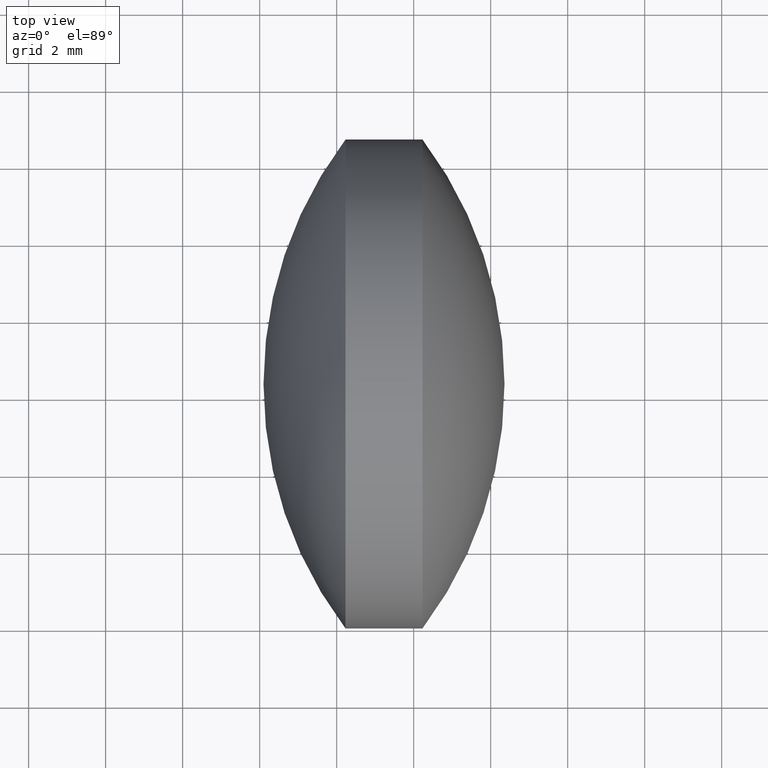
[diagram: clean part render]
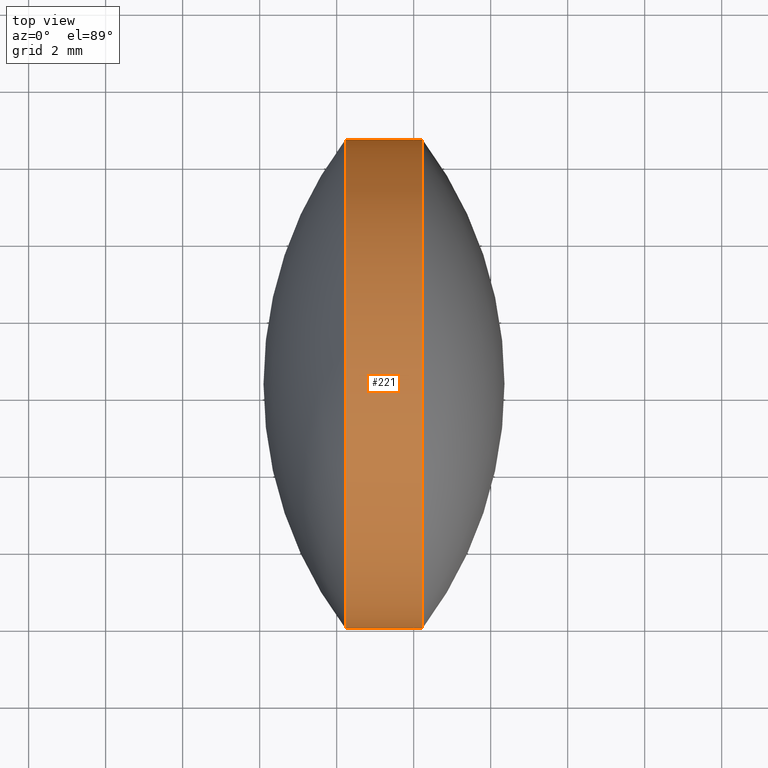
[diagram: same view with one face highlighted and labeled with its STEP entity id]
A machine part, top view. The second image highlights one B-rep face of the part: STEP entity #221.
In plain terms, the highlighted cylindrical surface (partial cylindrical patch) has radius 6.35 mm, axis along (-1, 0, -0).
Its self-contained STEP definition (entity closure, byte-faithful):
#4 = DIRECTION ( 'NONE',  ( -1.000000000000000000, 7.030499645320012300E-016, -0.0000000000000000000 ) ) ;
#27 = VERTEX_POINT ( 'NONE', #210 ) ;
#53 = CARTESIAN_POINT ( 'NONE',  ( 42.22906260161697400, 17.95805651159240000, -7.776507174585683300E-016 ) ) ;
#71 = DIRECTION ( 'NONE',  ( -1.000000000000000000, 7.030499645320012300E-016, -0.0000000000000000000 ) ) ;
#73 = CARTESIAN_POINT ( 'NONE',  ( 35.82682010691117100, 30.65805651159239500, 7.776507174585689200E-016 ) ) ;
#91 = ORIENTED_EDGE ( 'NONE', *, *, #106, .F. ) ;
#98 = DIRECTION ( 'NONE',  ( -1.092739197465706300E-015, -1.000000000000000000, 0.0000000000000000000 ) ) ;
#106 = EDGE_CURVE ( 'NONE', #293, #235, #185, .T. ) ;
#111 = AXIS2_PLACEMENT_3D ( 'NONE', #166, #262, #98 ) ;
#119 = CARTESIAN_POINT ( 'NONE',  ( 44.22913117304555200, 30.65805651159239200, 0.0000000000000000000 ) ) ;
#122 = DIRECTION ( 'NONE',  ( -1.092739197465705700E-015, -1.000000000000000000, 0.0000000000000000000 ) ) ;
#125 = VECTOR ( 'NONE', #184, 1000.000000000000000 ) ;
#139 = CARTESIAN_POINT ( 'NONE',  ( 44.22913117304554500, 24.30805651159239000, 0.0000000000000000000 ) ) ;
#140 = CIRCLE ( 'NONE', #111, 6.349999999999994300 ) ;
#153 = ORIENTED_EDGE ( 'NONE', *, *, #236, .F. ) ;
#155 = FACE_OUTER_BOUND ( 'NONE', #207, .T. ) ;
#162 = EDGE_CURVE ( 'NONE', #293, #267, #257, .T. ) ;
#166 = CARTESIAN_POINT ( 'NONE',  ( 42.22906260161697400, 24.30805651159239400, 0.0000000000000000000 ) ) ;
#177 = AXIS2_PLACEMENT_3D ( 'NONE', #139, #71, #240 ) ;
#184 = DIRECTION ( 'NONE',  ( -1.000000000000000000, 7.030499645320012300E-016, -0.0000000000000000000 ) ) ;
#185 = LINE ( 'NONE', #305, #125 ) ;
#188 = ORIENTED_EDGE ( 'NONE', *, *, #265, .T. ) ;
#207 = EDGE_LOOP ( 'NONE', ( #248, #188, #153, #91 ) ) ;
#210 = CARTESIAN_POINT ( 'NONE',  ( 42.22906260161698100, 30.65805651159238800, 0.0000000000000000000 ) ) ;
#221 = ADVANCED_FACE ( 'NONE', ( #155 ), #264, .T. ) ;
#228 = VECTOR ( 'NONE', #4, 1000.000000000000000 ) ;
#235 = VERTEX_POINT ( 'NONE', #53 ) ;
#236 = EDGE_CURVE ( 'NONE', #235, #27, #140, .T. ) ;
#240 = DIRECTION ( 'NONE',  ( -1.092739197465705700E-015, -1.000000000000000000, 0.0000000000000000000 ) ) ;
#245 = AXIS2_PLACEMENT_3D ( 'NONE', #260, #287, #122 ) ;
#248 = ORIENTED_EDGE ( 'NONE', *, *, #162, .T. ) ;
#257 = CIRCLE ( 'NONE', #177, 6.349999999999997900 ) ;
#260 = CARTESIAN_POINT ( 'NONE',  ( 35.82682010691116400, 24.30805651159239700, 0.0000000000000000000 ) ) ;
#262 = DIRECTION ( 'NONE',  ( -1.000000000000000000, 7.030499645320012300E-016, -0.0000000000000000000 ) ) ;
#263 = CARTESIAN_POINT ( 'NONE',  ( 44.22913117304553800, 17.95805651159238900, -7.776507174585695100E-016 ) ) ;
#264 = CYLINDRICAL_SURFACE ( 'NONE', #245, 6.349999999999997900 ) ;
#265 = EDGE_CURVE ( 'NONE', #267, #27, #272, .T. ) ;
#267 = VERTEX_POINT ( 'NONE', #119 ) ;
#272 = LINE ( 'NONE', #73, #228 ) ;
#287 = DIRECTION ( 'NONE',  ( -1.000000000000000000, 7.030499645320012300E-016, -0.0000000000000000000 ) ) ;
#293 = VERTEX_POINT ( 'NONE', #263 ) ;
#305 = CARTESIAN_POINT ( 'NONE',  ( 35.82682010691115700, 17.95805651159240000, 0.0000000000000000000 ) ) ;